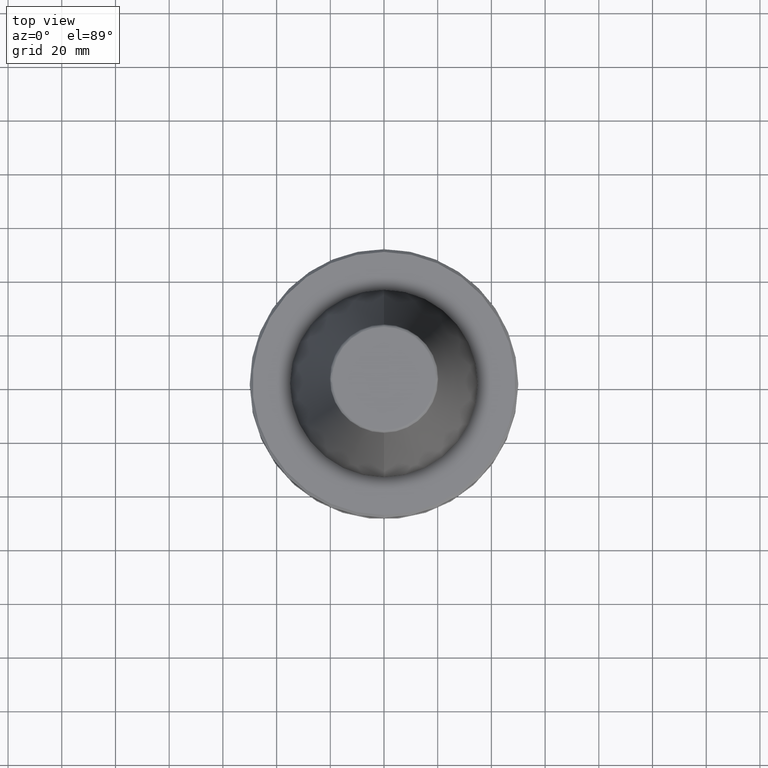
[diagram: clean part render]
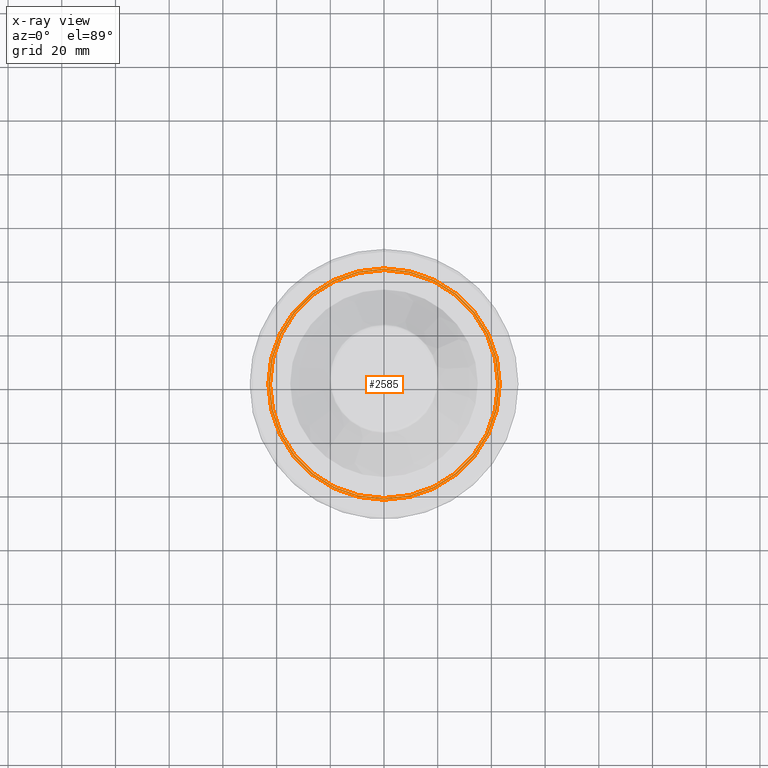
[diagram: x-ray — body ghosted, one internal face saturated and labeled with its STEP entity id]
A machine part, top view, then the same camera in x-ray: the body is ghosted and one INTERNAL B-rep face — a face not visible from any outside direction — is saturated and labeled: STEP entity #2585.
In plain terms, the highlighted planar face has unit normal (0, 0, 1).
Its self-contained STEP definition (entity closure, byte-faithful):
#29 = FACE_OUTER_BOUND ( 'NONE', #602, .T. ) ;
#173 = EDGE_CURVE ( 'NONE', #1384, #207, #2161, .T. ) ;
#205 = EDGE_CURVE ( 'NONE', #2001, #883, #1788, .T. ) ;
#207 = VERTEX_POINT ( 'NONE', #2228 ) ;
#233 = CARTESIAN_POINT ( 'NONE',  ( 0.0000000000000000000, 0.0000000000000000000, -19.70000000000001000 ) ) ;
#266 = CIRCLE ( 'NONE', #2088, 42.50000000000000000 ) ;
#287 = DIRECTION ( 'NONE',  ( 1.000000000000000000, 0.0000000000000000000, 0.0000000000000000000 ) ) ;
#288 = DIRECTION ( 'NONE',  ( 0.0000000000000000000, 0.0000000000000000000, 1.000000000000000000 ) ) ;
#308 = DIRECTION ( 'NONE',  ( 1.000000000000000000, 0.0000000000000000000, -0.0000000000000000000 ) ) ;
#312 = DIRECTION ( 'NONE',  ( 0.0000000000000000000, 0.0000000000000000000, 1.000000000000000000 ) ) ;
#319 = PLANE ( 'NONE',  #2602 ) ;
#403 = CARTESIAN_POINT ( 'NONE',  ( 0.0000000000000000000, 43.07217782649103600, -19.70000000000000300 ) ) ;
#474 = ORIENTED_EDGE ( 'NONE', *, *, #205, .F. ) ;
#573 = FACE_BOUND ( 'NONE', #1293, .T. ) ;
#602 = EDGE_LOOP ( 'NONE', ( #474, #638 ) ) ;
#638 = ORIENTED_EDGE ( 'NONE', *, *, #2664, .F. ) ;
#700 = AXIS2_PLACEMENT_3D ( 'NONE', #2160, #2402, #2013 ) ;
#883 = VERTEX_POINT ( 'NONE', #2149 ) ;
#902 = ORIENTED_EDGE ( 'NONE', *, *, #173, .F. ) ;
#974 = CARTESIAN_POINT ( 'NONE',  ( -42.50000000000000000, 5.204748896376250900E-015, -19.70000000000001000 ) ) ;
#1293 = EDGE_LOOP ( 'NONE', ( #2545, #902 ) ) ;
#1384 = VERTEX_POINT ( 'NONE', #974 ) ;
#1723 = AXIS2_PLACEMENT_3D ( 'NONE', #233, #288, #287 ) ;
#1788 = CIRCLE ( 'NONE', #2335, 43.07217782649103600 ) ;
#1898 = DIRECTION ( 'NONE',  ( 1.000000000000000000, 0.0000000000000000000, 0.0000000000000000000 ) ) ;
#1933 = EDGE_CURVE ( 'NONE', #207, #1384, #266, .T. ) ;
#1988 = CIRCLE ( 'NONE', #1723, 43.07217782649103600 ) ;
#2000 = DIRECTION ( 'NONE',  ( 0.0000000000000000000, 0.0000000000000000000, 1.000000000000000000 ) ) ;
#2001 = VERTEX_POINT ( 'NONE', #2084 ) ;
#2013 = DIRECTION ( 'NONE',  ( 1.000000000000000000, 0.0000000000000000000, 0.0000000000000000000 ) ) ;
#2057 = CARTESIAN_POINT ( 'NONE',  ( 0.0000000000000000000, 0.0000000000000000000, -19.70000000000001000 ) ) ;
#2084 = CARTESIAN_POINT ( 'NONE',  ( 43.07217782649103600, 0.0000000000000000000, -19.70000000000001000 ) ) ;
#2088 = AXIS2_PLACEMENT_3D ( 'NONE', #2202, #2200, #2194 ) ;
#2149 = CARTESIAN_POINT ( 'NONE',  ( -43.07217782649103600, 5.699027233244276000E-015, -19.70000000000001000 ) ) ;
#2160 = CARTESIAN_POINT ( 'NONE',  ( 0.0000000000000000000, 0.0000000000000000000, -19.70000000000001000 ) ) ;
#2161 = CIRCLE ( 'NONE', #700, 42.50000000000000000 ) ;
#2194 = DIRECTION ( 'NONE',  ( 1.000000000000000000, 0.0000000000000000000, 0.0000000000000000000 ) ) ;
#2200 = DIRECTION ( 'NONE',  ( -0.0000000000000000000, -0.0000000000000000000, -1.000000000000000000 ) ) ;
#2202 = CARTESIAN_POINT ( 'NONE',  ( 0.0000000000000000000, 0.0000000000000000000, -19.70000000000001000 ) ) ;
#2228 = CARTESIAN_POINT ( 'NONE',  ( 42.50000000000000000, 0.0000000000000000000, -19.70000000000001000 ) ) ;
#2335 = AXIS2_PLACEMENT_3D ( 'NONE', #2057, #2000, #1898 ) ;
#2402 = DIRECTION ( 'NONE',  ( -0.0000000000000000000, -0.0000000000000000000, -1.000000000000000000 ) ) ;
#2545 = ORIENTED_EDGE ( 'NONE', *, *, #1933, .F. ) ;
#2585 = ADVANCED_FACE ( 'NONE', ( #29, #573 ), #319, .F. ) ;
#2602 = AXIS2_PLACEMENT_3D ( 'NONE', #403, #312, #308 ) ;
#2664 = EDGE_CURVE ( 'NONE', #883, #2001, #1988, .T. ) ;